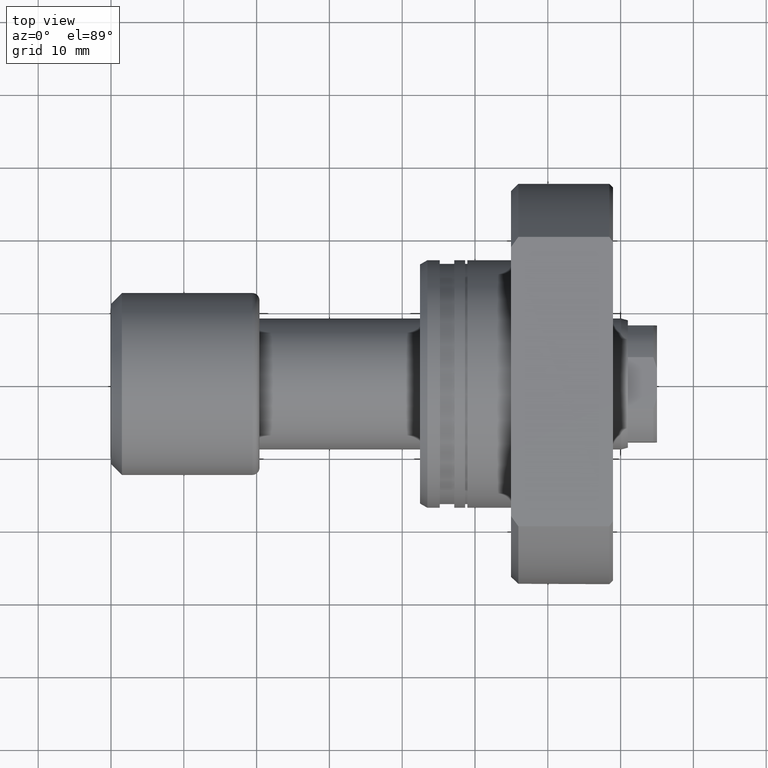
[diagram: clean part render]
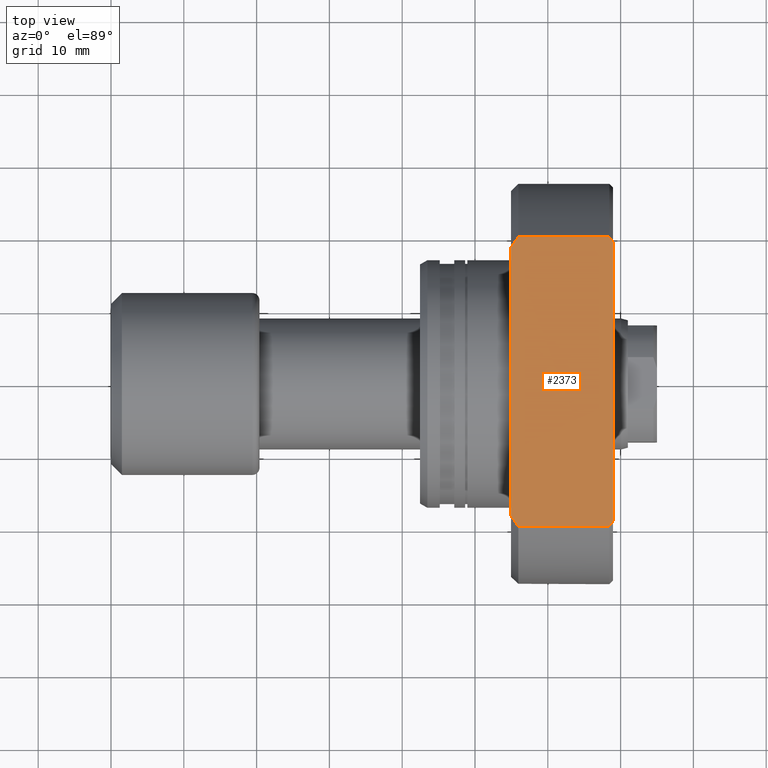
[diagram: same view with one face highlighted and labeled with its STEP entity id]
A machine part, top view. The second image highlights one B-rep face of the part: STEP entity #2373.
In plain terms, the highlighted planar face has unit normal (0, 0, 1).
Its self-contained STEP definition (entity closure, byte-faithful):
#60 = DIRECTION ( 'NONE',  ( 9.242617352055502386E-18, -1.000000000000000000, 0.000000000000000000 ) ) ;
#89 = EDGE_CURVE ( 'NONE', #2516, #544, #1281, .T. ) ;
#98 = VECTOR ( 'NONE', #743, 1000.000000000000000 ) ;
#126 = ORIENTED_EDGE ( 'NONE', *, *, #2280, .T. ) ;
#152 = VECTOR ( 'NONE', #1368, 1000.000000000000000 ) ;
#208 = VERTEX_POINT ( 'NONE', #2896 ) ;
#221 = CARTESIAN_POINT ( 'NONE',  ( -2.151057110211240797E-13, 19.88089535207168623, 19.00000000000001066 ) ) ;
#369 = CARTESIAN_POINT ( 'NONE',  ( 26.33429591812845061, -19.41654999763447620, 19.00000000000001066 ) ) ;
#407 = CARTESIAN_POINT ( 'NONE',  ( 13.49999999999998757, -19.88089535207056002, 19.00000000000001421 ) ) ;
#487 = CARTESIAN_POINT ( 'NONE',  ( 26.33435831467464538, 19.41646217622441029, 19.00000000000001066 ) ) ;
#521 = CARTESIAN_POINT ( 'NONE',  ( 12.50000000000000355, 18.47295320191106072, 19.00000000000001066 ) ) ;
#544 = VERTEX_POINT ( 'NONE', #1157 ) ;
#616 = LINE ( 'NONE', #2307, #1626 ) ;
#635 = DIRECTION ( 'NONE',  ( 0.000000000000000000, 0.000000000000000000, 1.000000000000000000 ) ) ;
#702 = CARTESIAN_POINT ( 'NONE',  ( 12.50000000000000355, 18.47295320191106072, 19.00000000000001066 ) ) ;
#743 = DIRECTION ( 'NONE',  ( 1.000000000000000000, -2.886466111666351885E-14, -0.000000000000000000 ) ) ;
#829 = EDGE_CURVE ( 'NONE', #208, #2333, #2374, .T. ) ;
#852 = CARTESIAN_POINT ( 'NONE',  ( 12.50000000000000355, -18.47295320191106072, 19.00000000000001066 ) ) ;
#867 = ORIENTED_EDGE ( 'NONE', *, *, #829, .T. ) ;
#970 = DIRECTION ( 'NONE',  ( -0.000000000000000000, 1.000000000000000000, 0.000000000000000000 ) ) ;
#994 = CARTESIAN_POINT ( 'NONE',  ( 26.00000000000007461, 19.88089535207092950, 19.00000000000000355 ) ) ;
#1013 = CARTESIAN_POINT ( 'NONE',  ( 13.49999999999998757, 19.88089535207129188, 19.00000000000000355 ) ) ;
#1085 = CARTESIAN_POINT ( 'NONE',  ( -1.360023205165816762E-12, -19.88089535207016922, 19.00000000000001421 ) ) ;
#1157 = CARTESIAN_POINT ( 'NONE',  ( 26.50000000000000355, -19.18332609325086224, 19.00000000000000711 ) ) ;
#1260 = CARTESIAN_POINT ( 'NONE',  ( 26.00000000000007461, -19.88089535207091885, 19.00000000000001421 ) ) ;
#1281 = B_SPLINE_CURVE_WITH_KNOTS ( 'NONE', 3,
 ( #1878, #1351, #369, #3087 ),
 .UNSPECIFIED., .F., .F.,
 ( 4, 4 ),
 ( 0.03127512062948595295, 0.03213456893170307110 ),
 .UNSPECIFIED. ) ;
#1351 = CARTESIAN_POINT ( 'NONE',  ( 26.16760613831981885, -19.64905625618670726, 19.00000000000001066 ) ) ;
#1368 = DIRECTION ( 'NONE',  ( 1.000000000000000000, -2.886466111666351885E-14, -0.000000000000000000 ) ) ;
#1388 = CARTESIAN_POINT ( 'NONE',  ( 12.50000000000000355, -18.47295320191106072, 19.00000000000001066 ) ) ;
#1428 = CARTESIAN_POINT ( 'NONE',  ( 26.50000000000000355, 19.18332609325086935, 19.00000000000000711 ) ) ;
#1431 = VERTEX_POINT ( 'NONE', #1388 ) ;
#1471 = CARTESIAN_POINT ( 'NONE',  ( 26.00000000000007461, 19.88089535207092950, 19.00000000000000355 ) ) ;
#1498 = EDGE_LOOP ( 'NONE', ( #867, #126, #1974, #3121, #1863, #2710, #2678, #2808 ) ) ;
#1517 = CARTESIAN_POINT ( 'NONE',  ( 26.50000000000000355, 19.88089535207168623, 19.00000000000001066 ) ) ;
#1626 = VECTOR ( 'NONE', #60, 1000.000000000000000 ) ;
#1834 = VERTEX_POINT ( 'NONE', #994 ) ;
#1853 = EDGE_CURVE ( 'NONE', #544, #2099, #2467, .T. ) ;
#1863 = ORIENTED_EDGE ( 'NONE', *, *, #89, .T. ) ;
#1875 = EDGE_CURVE ( 'NONE', #208, #1834, #2239, .T. ) ;
#1878 = CARTESIAN_POINT ( 'NONE',  ( 26.00000000000007461, -19.88089535207091885, 19.00000000000001421 ) ) ;
#1974 = ORIENTED_EDGE ( 'NONE', *, *, #2640, .T. ) ;
#1994 = CARTESIAN_POINT ( 'NONE',  ( -2.151057110211240797E-13, 19.88089535207167913, 19.00000000000000355 ) ) ;
#1998 = EDGE_CURVE ( 'NONE', #2830, #2516, #2559, .T. ) ;
#2093 = AXIS2_PLACEMENT_3D ( 'NONE', #221, #635, #2638 ) ;
#2099 = VERTEX_POINT ( 'NONE', #1428 ) ;
#2143 = FACE_OUTER_BOUND ( 'NONE', #1498, .T. ) ;
#2211 = CARTESIAN_POINT ( 'NONE',  ( 13.16276636410033873, 19.41442114037127453, 19.00000000000001066 ) ) ;
#2239 = LINE ( 'NONE', #1994, #98 ) ;
#2280 = EDGE_CURVE ( 'NONE', #2333, #1431, #616, .T. ) ;
#2307 = CARTESIAN_POINT ( 'NONE',  ( 12.50000000000000355, -16.99999999999999645, 19.00000000000001066 ) ) ;
#2333 = VERTEX_POINT ( 'NONE', #702 ) ;
#2373 = ADVANCED_FACE ( 'NONE', ( #2143 ), #3120, .T. ) ;
#2374 = B_SPLINE_CURVE_WITH_KNOTS ( 'NONE', 3,
 ( #1013, #2211, #2472, #521 ),
 .UNSPECIFIED., .F., .F.,
 ( 4, 4 ),
 ( 0.03128279945209438972, 0.03301205973984312758 ),
 .UNSPECIFIED. ) ;
#2391 = CARTESIAN_POINT ( 'NONE',  ( 12.82897297353833999, -18.94487470268462914, 19.00000000000001066 ) ) ;
#2396 = VECTOR ( 'NONE', #970, 1000.000000000000000 ) ;
#2467 = LINE ( 'NONE', #1517, #2396 ) ;
#2472 = CARTESIAN_POINT ( 'NONE',  ( 12.82923531929442262, 18.94525104546319128, 19.00000000000001066 ) ) ;
#2516 = VERTEX_POINT ( 'NONE', #1260 ) ;
#2559 = LINE ( 'NONE', #1085, #152 ) ;
#2638 = DIRECTION ( 'NONE',  ( 1.000000000000000000, 0.000000000000000000, -0.000000000000000000 ) ) ;
#2640 = EDGE_CURVE ( 'NONE', #1431, #2830, #3035, .T. ) ;
#2678 = ORIENTED_EDGE ( 'NONE', *, *, #2989, .T. ) ;
#2710 = ORIENTED_EDGE ( 'NONE', *, *, #1853, .T. ) ;
#2761 = B_SPLINE_CURVE_WITH_KNOTS ( 'NONE', 3,
 ( #3176, #487, #2952, #1471 ),
 .UNSPECIFIED., .F., .F.,
 ( 4, 4 ),
 ( 0.07446973138748344545, 0.07533421896860403866 ),
 .UNSPECIFIED. ) ;
#2808 = ORIENTED_EDGE ( 'NONE', *, *, #1875, .F. ) ;
#2830 = VERTEX_POINT ( 'NONE', #407 ) ;
#2834 = CARTESIAN_POINT ( 'NONE',  ( 13.16251021117672160, -19.41406682004138773, 19.00000000000001066 ) ) ;
#2896 = CARTESIAN_POINT ( 'NONE',  ( 13.49999999999998757, 19.88089535207129188, 19.00000000000000355 ) ) ;
#2952 = CARTESIAN_POINT ( 'NONE',  ( 26.16766778152496187, 19.64897098899368899, 19.00000000000001066 ) ) ;
#2989 = EDGE_CURVE ( 'NONE', #2099, #1834, #2761, .T. ) ;
#3035 = B_SPLINE_CURVE_WITH_KNOTS ( 'NONE', 3,
 ( #852, #2391, #2834, #3083 ),
 .UNSPECIFIED., .F., .F.,
 ( 4, 4 ),
 ( 0.07360185391654980314, 0.07534192973589427800 ),
 .UNSPECIFIED. ) ;
#3083 = CARTESIAN_POINT ( 'NONE',  ( 13.49999999999998757, -19.88089535207056002, 19.00000000000001421 ) ) ;
#3087 = CARTESIAN_POINT ( 'NONE',  ( 26.50000000000000355, -19.18332609325086224, 19.00000000000000711 ) ) ;
#3120 = PLANE ( 'NONE',  #2093 ) ;
#3121 = ORIENTED_EDGE ( 'NONE', *, *, #1998, .T. ) ;
#3176 = CARTESIAN_POINT ( 'NONE',  ( 26.50000000000000355, 19.18332609325086935, 19.00000000000000711 ) ) ;